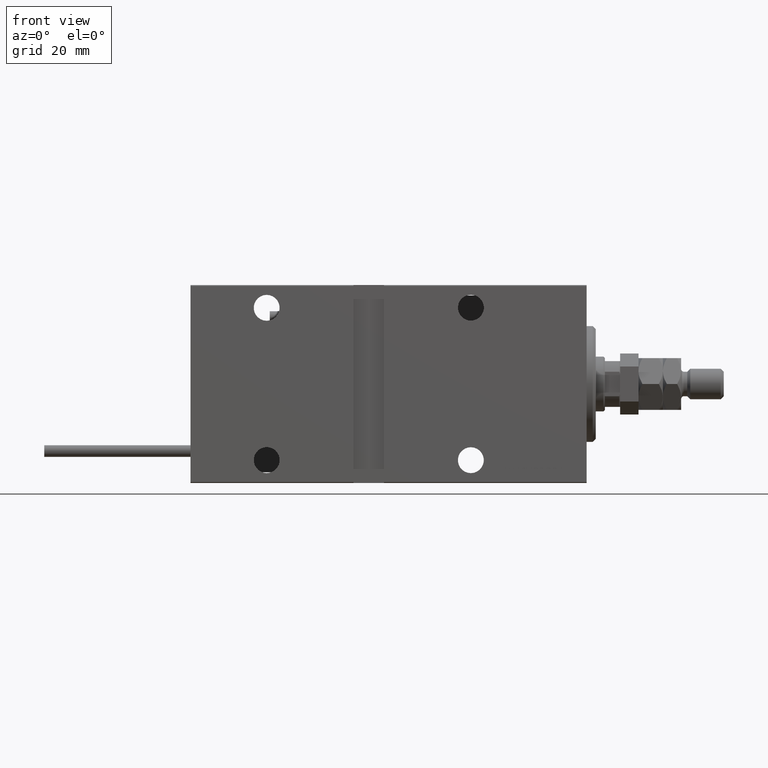
[diagram: clean part render]
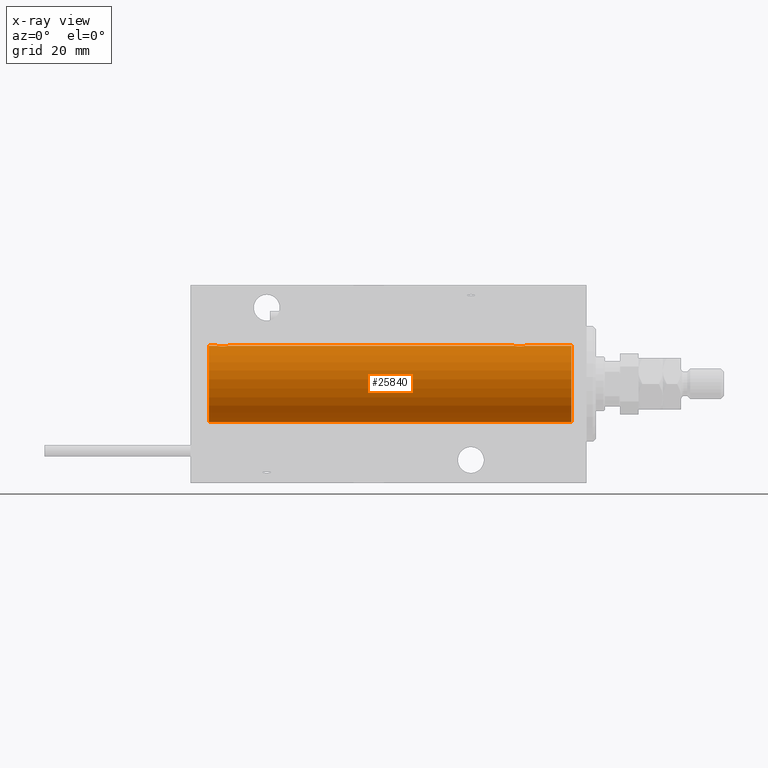
[diagram: x-ray — body ghosted, one internal face saturated and labeled with its STEP entity id]
A machine part, front view, then the same camera in x-ray: the body is ghosted and one INTERNAL B-rep face — a face not visible from any outside direction — is saturated and labeled: STEP entity #25840.
In plain terms, the highlighted cylindrical surface (partial cylindrical patch) has radius 12.5 mm, axis along (1, 0, -0).
Its self-contained STEP definition (entity closure, byte-faithful):
#44 = DIRECTION ( 'NONE',  ( -1.000000000000000000, -0.000000000000000000, -0.000000000000000000 ) ) ;
#207 = CARTESIAN_POINT ( 'NONE',  ( 121.0903668000940456, 1.219754986802274344, 12.44082361696003503 ) ) ;
#372 = ORIENTED_EDGE ( 'NONE', *, *, #48920, .T. ) ;
#384 = ORIENTED_EDGE ( 'NONE', *, *, #4585, .T. ) ;
#987 = CARTESIAN_POINT ( 'NONE',  ( 117.9100859131937824, 1.220297236145715614, 12.44076681548080821 ) ) ;
#1248 = CARTESIAN_POINT ( 'NONE',  ( 121.3974772970180993, 0.6455696738844914906, 12.48390768591463384 ) ) ;
#1674 = CARTESIAN_POINT ( 'NONE',  ( 23.79699211628617661, 0.8876934327478163134, 12.46903010196599837 ) ) ;
#2105 = CYLINDRICAL_SURFACE ( 'NONE', #15781, 12.50000000000000000 ) ;
#2970 = CARTESIAN_POINT ( 'NONE',  ( 20.99664185700817853, 1.734998657226762830, 12.37922086519035680 ) ) ;
#3834 = VERTEX_POINT ( 'NONE', #30459 ) ;
#3956 = ORIENTED_EDGE ( 'NONE', *, *, #34137, .F. ) ;
#4585 = EDGE_CURVE ( 'NONE', #32756, #29410, #19978, .T. ) ;
#4655 = CARTESIAN_POINT ( 'NONE',  ( 118.1789716649930710, 1.507394620545633890, 12.40913174964213539 ) ) ;
#5605 = CARTESIAN_POINT ( 'NONE',  ( 23.99999999999999645, 0.1323736289504348906, 12.50000000000000000 ) ) ;
#6604 = VERTEX_POINT ( 'NONE', #18188 ) ;
#7668 = CARTESIAN_POINT ( 'NONE',  ( 21.35584766229707654, 1.897967064543088389, 12.35517291625592406 ) ) ;
#8591 = CARTESIAN_POINT ( 'NONE',  ( 121.0060163367279671, 1.322451657002065906, 12.43019346654085489 ) ) ;
#8919 = DIRECTION ( 'NONE',  ( -1.000000000000000000, -0.000000000000000000, -0.000000000000000000 ) ) ;
#9062 = VERTEX_POINT ( 'NONE', #40960 ) ;
#9100 = CARTESIAN_POINT ( 'NONE',  ( 117.5643822547815773, 0.5201193324741318902, 12.48983485452575337 ) ) ;
#9791 = CARTESIAN_POINT ( 'NONE',  ( 23.98698791483651149, 0.2624928479599948905, 12.49789934882883458 ) ) ;
#10396 = EDGE_CURVE ( 'NONE', #47414, #14543, #22019, .T. ) ;
#11263 = CARTESIAN_POINT ( 'NONE',  ( 124.0000000000000000, 0.000000000000000000, 0.000000000000000000 ) ) ;
#11338 = CARTESIAN_POINT ( 'NONE',  ( 20.20257508083844300, 0.8868029758979374400, 12.46909283808506252 ) ) ;
#11356 = ORIENTED_EDGE ( 'NONE', *, *, #15614, .F. ) ;
#11476 = CIRCLE ( 'NONE', #39051, 12.50000000000000000 ) ;
#11859 = CARTESIAN_POINT ( 'NONE',  ( 20.49266449635678100, 1.321095788880536137, 12.43034574091278266 ) ) ;
#12262 = CARTESIAN_POINT ( 'NONE',  ( 118.4966418570082567, 1.734998657226760832, 12.37922086519036036 ) ) ;
#12521 = CARTESIAN_POINT ( 'NONE',  ( 120.5068312044750058, 1.747608771958138352, 12.37764291807175709 ) ) ;
#12969 = DIRECTION ( 'NONE',  ( -1.000000000000000000, 0.000000000000000000, 0.000000000000000000 ) ) ;
#13033 = CARTESIAN_POINT ( 'NONE',  ( 117.7025750808384714, 0.8868029758979321109, 12.46909283808506430 ) ) ;
#13642 = CARTESIAN_POINT ( 'NONE',  ( 124.0000000000000000, 0.000000000000000000, 12.50000000000000000 ) ) ;
#14543 = VERTEX_POINT ( 'NONE', #28868 ) ;
#14676 = DIRECTION ( 'NONE',  ( -1.000000000000000000, -0.000000000000000000, -0.000000000000000000 ) ) ;
#15614 = EDGE_CURVE ( 'NONE', #3834, #9062, #17870, .T. ) ;
#15781 = AXIS2_PLACEMENT_3D ( 'NONE', #11263, #48873, #16414 ) ;
#16025 = LINE ( 'NONE', #20223, #39353 ) ;
#16108 = VECTOR ( 'NONE', #8919, 1000.000000000000000 ) ;
#16414 = DIRECTION ( 'NONE',  ( 0.000000000000000000, 0.000000000000000000, 1.000000000000000000 ) ) ;
#16698 = CARTESIAN_POINT ( 'NONE',  ( 121.4869879148365328, 0.2624928479599940023, 12.49789934882883458 ) ) ;
#16965 = CARTESIAN_POINT ( 'NONE',  ( 117.5000000000000142, -7.266434456262306043E-23, 12.50000000000000000 ) ) ;
#17658 = CARTESIAN_POINT ( 'NONE',  ( 23.73553255438137555, 1.002494658017160090, 12.46021263690097491 ) ) ;
#17870 = CIRCLE ( 'NONE', #30395, 12.50000000000000000 ) ;
#18188 = CARTESIAN_POINT ( 'NONE',  ( 121.5000000000000284, 3.163483401492493339E-15, 12.50000000000000000 ) ) ;
#18947 = CARTESIAN_POINT ( 'NONE',  ( 21.48062649148445047, 1.935814255713572019, 12.34922241902463469 ) ) ;
#19978 = LINE ( 'NONE', #34721, #49337 ) ;
#20223 = CARTESIAN_POINT ( 'NONE',  ( 124.0000000000000000, 1.530808498934191521E-15, -12.50000000000000000 ) ) ;
#20380 = CARTESIAN_POINT ( 'NONE',  ( 118.9806264914844576, 1.935814255713564691, 12.34922241902462758 ) ) ;
#20628 = CARTESIAN_POINT ( 'NONE',  ( 117.9926644963568521, 1.321095788880532362, 12.43034574091278444 ) ) ;
#21156 = CARTESIAN_POINT ( 'NONE',  ( 118.2801920940542573, 1.590288205413970202, 12.39864157855464910 ) ) ;
#21402 = EDGE_CURVE ( 'NONE', #6604, #47414, #31558, .T. ) ;
#21586 = CARTESIAN_POINT ( 'NONE',  ( 23.93604351777362993, 0.5184196815546091575, 12.48990118705761709 ) ) ;
#22019 = LINE ( 'NONE', #13642, #16108 ) ;
#24157 = B_SPLINE_CURVE_WITH_KNOTS ( 'NONE', 3,
 ( #41460, #5605, #9791, #21586, #37539, #1674, #17658, #49598, #25765, #34654, #38838, #47210, #51387, #43263, #34904, #18947, #7668, #27562, #2970, #35668, #42767, #11859, #50616, #35163, #11338, #51633, #38572, #46960, #50873, #31000 ),
 .UNSPECIFIED., .F., .F.,
 ( 4, 2, 2, 2, 2, 2, 2, 2, 2, 2, 2, 2, 2, 2, 4 ),
 ( 3.101773669235365923E-18, 0.0003914362731607605559, 0.0007828725463215181844, 0.001174308819482275650, 0.001565745092643033550, 0.002348617638964548265, 0.003131490185286063196, 0.003522926458446825216, 0.003914362731607588103, 0.004305799004768350556, 0.004697235277929112142, 0.005088671551089875462, 0.005480107824250637048, 0.005871544097411400369, 0.006262980370572162822 ),
 .UNSPECIFIED. ) ;
#24322 = DIRECTION ( 'NONE',  ( 0.000000000000000000, 0.000000000000000000, 1.000000000000000000 ) ) ;
#25087 = CARTESIAN_POINT ( 'NONE',  ( 118.8558476622971227, 1.897967064543083948, 12.35517291625591874 ) ) ;
#25346 = CARTESIAN_POINT ( 'NONE',  ( 120.7296649387315313, 1.598680238462358627, 12.39873273758731997 ) ) ;
#25617 = VECTOR ( 'NONE', #14676, 1000.000000000000000 ) ;
#25765 = CARTESIAN_POINT ( 'NONE',  ( 23.50601633672791380, 1.322451657002079450, 12.43019346654085133 ) ) ;
#25840 = ADVANCED_FACE ( 'NONE', ( #50538 ), #2105, .F. ) ;
#26722 = CARTESIAN_POINT ( 'NONE',  ( 124.0000000000000000, 0.000000000000000000, 12.50000000000000000 ) ) ;
#27562 = CARTESIAN_POINT ( 'NONE',  ( 21.11343686466983982, 1.797558627508994533, 12.37018026341338484 ) ) ;
#28753 = CARTESIAN_POINT ( 'NONE',  ( 117.5130961523374964, 0.2633501011236108469, 12.49788564268284041 ) ) ;
#28868 = CARTESIAN_POINT ( 'NONE',  ( 24.00000000000000000, -2.019790789754703983E-15, 12.50000000000000000 ) ) ;
#29005 = CARTESIAN_POINT ( 'NONE',  ( 117.6022696860634511, 0.6448065707252962353, 12.48394649977302429 ) ) ;
#29271 = CARTESIAN_POINT ( 'NONE',  ( 118.6134368646698931, 1.797558627508992535, 12.37018026341338839 ) ) ;
#29410 = VERTEX_POINT ( 'NONE', #32693 ) ;
#29467 = CARTESIAN_POINT ( 'NONE',  ( 124.0000000000000000, 0.000000000000000000, 0.000000000000000000 ) ) ;
#29609 = ORIENTED_EDGE ( 'NONE', *, *, #10396, .T. ) ;
#30395 = AXIS2_PLACEMENT_3D ( 'NONE', #29467, #12969, #48833 ) ;
#30459 = CARTESIAN_POINT ( 'NONE',  ( 124.0000000000000000, 0.000000000000000000, 12.50000000000000000 ) ) ;
#31000 = CARTESIAN_POINT ( 'NONE',  ( 19.99999999999999645, -7.265724481447607133E-23, 12.50000000000000000 ) ) ;
#31558 = B_SPLINE_CURVE_WITH_KNOTS ( 'NONE', 3,
 ( #36845, #41031, #16698, #32168, #1248, #44183, #48121, #207, #8591, #25346, #12521, #37112, #32411, #40508, #48375, #20380, #25087, #29271, #12262, #21156, #4655, #20628, #987, #44960, #13033, #29005, #9100, #28753, #48636, #16965 ),
 .UNSPECIFIED., .F., .F.,
 ( 4, 2, 2, 2, 2, 2, 2, 2, 2, 2, 2, 2, 2, 2, 4 ),
 ( 3.073563828301030308E-18, 0.0003914362731607732952, 0.0007828725463215434463, 0.001174308819482313597, 0.001565745092643083857, 0.002348617638964595102, 0.003131490185286106131, 0.003522926458446862079, 0.003914362731607617593, 0.004305799004768373107, 0.004697235277929129489, 0.005088671551089885003, 0.005480107824250639650, 0.005871544097411396032, 0.006262980370572151546 ),
 .UNSPECIFIED. ) ;
#31696 = CARTESIAN_POINT ( 'NONE',  ( 117.5000000000000142, -7.266434456262306043E-23, 12.50000000000000000 ) ) ;
#32168 = CARTESIAN_POINT ( 'NONE',  ( 121.4360435177736548, 0.5184196815546076031, 12.48990118705761354 ) ) ;
#32411 = CARTESIAN_POINT ( 'NONE',  ( 119.7621180633162936, 1.999901172190670762, 12.33897869807161385 ) ) ;
#32693 = CARTESIAN_POINT ( 'NONE',  ( 5.000000000000004441, 0.000000000000000000, 12.50000000000000000 ) ) ;
#32756 = VERTEX_POINT ( 'NONE', #33157 ) ;
#33157 = CARTESIAN_POINT ( 'NONE',  ( 19.99999999999999645, -7.265724481447607133E-23, 12.50000000000000000 ) ) ;
#34137 = EDGE_CURVE ( 'NONE', #9062, #46270, #16025, .T. ) ;
#34654 = CARTESIAN_POINT ( 'NONE',  ( 23.22966493873148863, 1.598680238462371284, 12.39873273758732175 ) ) ;
#34721 = CARTESIAN_POINT ( 'NONE',  ( 124.0000000000000000, 0.000000000000000000, 12.50000000000000000 ) ) ;
#34904 = CARTESIAN_POINT ( 'NONE',  ( 21.73730537545401731, 1.986986967296538120, 12.34109209020652642 ) ) ;
#35163 = CARTESIAN_POINT ( 'NONE',  ( 20.26529257602388867, 1.003863686549170353, 12.46009879577771429 ) ) ;
#35668 = CARTESIAN_POINT ( 'NONE',  ( 20.78019209405420042, 1.590288205413970646, 12.39864157855464910 ) ) ;
#35726 = ORIENTED_EDGE ( 'NONE', *, *, #21402, .T. ) ;
#36845 = CARTESIAN_POINT ( 'NONE',  ( 121.5000000000000284, 3.163483401492493339E-15, 12.50000000000000000 ) ) ;
#37112 = CARTESIAN_POINT ( 'NONE',  ( 120.0256358717049068, 1.947190906025039858, 12.34781876294798764 ) ) ;
#37539 = CARTESIAN_POINT ( 'NONE',  ( 23.89747729701804957, 0.6455696738844942661, 12.48390768591463207 ) ) ;
#37916 = ORIENTED_EDGE ( 'NONE', *, *, #46989, .T. ) ;
#38572 = CARTESIAN_POINT ( 'NONE',  ( 20.06438225478150272, 0.5201193324741336665, 12.48983485452574982 ) ) ;
#38838 = CARTESIAN_POINT ( 'NONE',  ( 23.00683120447498808, 1.747608771958142793, 12.37764291807175709 ) ) ;
#39051 = AXIS2_PLACEMENT_3D ( 'NONE', #47617, #43680, #24322 ) ;
#39353 = VECTOR ( 'NONE', #44, 1000.000000000000000 ) ;
#40508 = CARTESIAN_POINT ( 'NONE',  ( 119.3700737063973776, 2.000049200055392440, 12.33895470450622689 ) ) ;
#40960 = CARTESIAN_POINT ( 'NONE',  ( 124.0000000000000000, 1.530808498934191521E-15, -12.50000000000000000 ) ) ;
#41031 = CARTESIAN_POINT ( 'NONE',  ( 121.5000000000000284, 0.1323736289504353347, 12.50000000000000178 ) ) ;
#41460 = CARTESIAN_POINT ( 'NONE',  ( 24.00000000000000000, -2.019790789754703983E-15, 12.50000000000000000 ) ) ;
#42767 = CARTESIAN_POINT ( 'NONE',  ( 20.67897166499301775, 1.507394620545638997, 12.40913174964213717 ) ) ;
#43263 = CARTESIAN_POINT ( 'NONE',  ( 21.87007370639734205, 2.000049200055400433, 12.33895470450622867 ) ) ;
#43415 = EDGE_LOOP ( 'NONE', ( #3956, #11356, #372, #35726, #29609, #37916, #384, #46356 ) ) ;
#43680 = DIRECTION ( 'NONE',  ( -1.000000000000000000, 0.000000000000000000, 0.000000000000000000 ) ) ;
#44183 = CARTESIAN_POINT ( 'NONE',  ( 121.2969921162861908, 0.8876934327478118725, 12.46903010196599659 ) ) ;
#44960 = CARTESIAN_POINT ( 'NONE',  ( 117.7652925760239100, 1.003863686549167245, 12.46009879577771073 ) ) ;
#45330 = CARTESIAN_POINT ( 'NONE',  ( 5.000000000000004441, 1.530808498934191521E-15, -12.50000000000000000 ) ) ;
#46270 = VERTEX_POINT ( 'NONE', #45330 ) ;
#46356 = ORIENTED_EDGE ( 'NONE', *, *, #51157, .T. ) ;
#46359 = LINE ( 'NONE', #26722, #25617 ) ;
#46960 = CARTESIAN_POINT ( 'NONE',  ( 20.01309615233744665, 0.2633501011236107914, 12.49788564268284041 ) ) ;
#46989 = EDGE_CURVE ( 'NONE', #14543, #32756, #24157, .T. ) ;
#47210 = CARTESIAN_POINT ( 'NONE',  ( 22.52563587170489612, 1.947190906025044521, 12.34781876294798586 ) ) ;
#47414 = VERTEX_POINT ( 'NONE', #31696 ) ;
#47617 = CARTESIAN_POINT ( 'NONE',  ( 5.000000000000004441, 0.000000000000000000, 0.000000000000000000 ) ) ;
#48121 = CARTESIAN_POINT ( 'NONE',  ( 121.2355325543814075, 1.002494658017152318, 12.46021263690097136 ) ) ;
#48375 = CARTESIAN_POINT ( 'NONE',  ( 119.2373053754540990, 1.986986967296531015, 12.34109209020653353 ) ) ;
#48636 = CARTESIAN_POINT ( 'NONE',  ( 117.5000000000000426, 0.1306394121199364600, 12.50000000000000355 ) ) ;
#48833 = DIRECTION ( 'NONE',  ( 0.000000000000000000, 0.000000000000000000, 1.000000000000000000 ) ) ;
#48873 = DIRECTION ( 'NONE',  ( -1.000000000000000000, -0.000000000000000000, -0.000000000000000000 ) ) ;
#48920 = EDGE_CURVE ( 'NONE', #3834, #6604, #46359, .T. ) ;
#49337 = VECTOR ( 'NONE', #50683, 1000.000000000000000 ) ;
#49598 = CARTESIAN_POINT ( 'NONE',  ( 23.59036680009405629, 1.219754986802283003, 12.44082361696003858 ) ) ;
#50538 = FACE_OUTER_BOUND ( 'NONE', #43415, .T. ) ;
#50616 = CARTESIAN_POINT ( 'NONE',  ( 20.41008591319372201, 1.220297236145719610, 12.44076681548080465 ) ) ;
#50683 = DIRECTION ( 'NONE',  ( -1.000000000000000000, -0.000000000000000000, -0.000000000000000000 ) ) ;
#50873 = CARTESIAN_POINT ( 'NONE',  ( 20.00000000000000000, 0.1306394121199368485, 12.50000000000000178 ) ) ;
#51157 = EDGE_CURVE ( 'NONE', #29410, #46270, #11476, .T. ) ;
#51387 = CARTESIAN_POINT ( 'NONE',  ( 22.26211806331625098, 1.999901172190677201, 12.33897869807161563 ) ) ;
#51633 = CARTESIAN_POINT ( 'NONE',  ( 20.10226968606341202, 0.6448065707252997880, 12.48394649977302073 ) ) ;